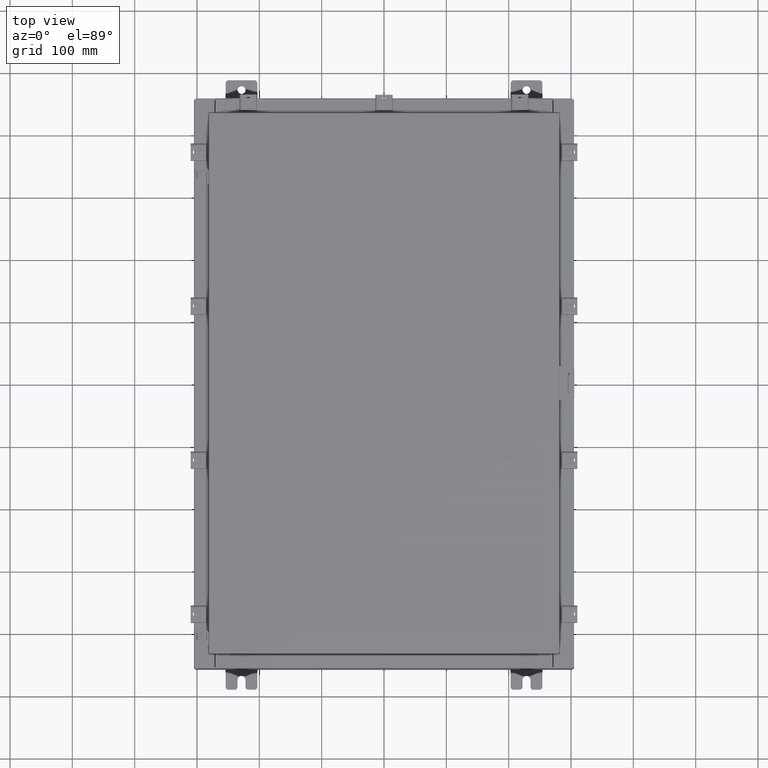
[diagram: clean part render]
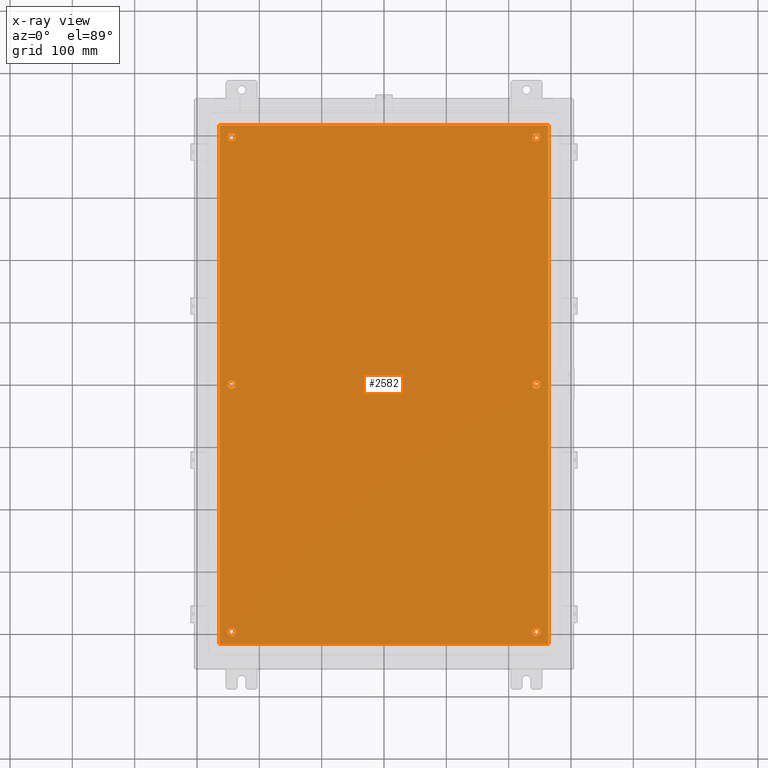
[diagram: x-ray — body ghosted, one internal face saturated and labeled with its STEP entity id]
A machine part, top view, then the same camera in x-ray: the body is ghosted and one INTERNAL B-rep face — a face not visible from any outside direction — is saturated and labeled: STEP entity #2582.
In plain terms, the highlighted planar face has unit normal (0, 0, -1).
Its self-contained STEP definition (entity closure, byte-faithful):
#240 = EDGE_CURVE ( 'NONE', #3705, #824, #16603, .T. ) ;
#605 = EDGE_CURVE ( 'NONE', #8157, #15867, #16318, .T. ) ;
#811 = FACE_OUTER_BOUND ( 'NONE', #6236, .T. ) ;
#824 = VERTEX_POINT ( 'NONE', #2814 ) ;
#876 = AXIS2_PLACEMENT_3D ( 'NONE', #16723, #6020, #18517 ) ;
#1012 = EDGE_LOOP ( 'NONE', ( #7899, #21853 ) ) ;
#1088 = EDGE_LOOP ( 'NONE', ( #7766, #10263 ) ) ;
#1118 = CARTESIAN_POINT ( 'NONE',  ( -9.875000000000007100, 15.62500000000000200, -0.1039999999999999800 ) ) ;
#1349 = EDGE_CURVE ( 'NONE', #824, #8157, #13275, .T. ) ;
#1371 = ORIENTED_EDGE ( 'NONE', *, *, #22105, .F. ) ;
#1376 = CIRCLE ( 'NONE', #876, 0.2499999999999998100 ) ;
#1528 = CIRCLE ( 'NONE', #2418, 0.2500000000000008900 ) ;
#1532 = EDGE_CURVE ( 'NONE', #1888, #10016, #19974, .T. ) ;
#1780 = PLANE ( 'NONE',  #5433 ) ;
#1801 = AXIS2_PLACEMENT_3D ( 'NONE', #10605, #23094, #12400 ) ;
#1888 = VERTEX_POINT ( 'NONE', #16087 ) ;
#1956 = FACE_BOUND ( 'NONE', #1088, .T. ) ;
#2012 = EDGE_CURVE ( 'NONE', #10016, #1888, #15748, .T. ) ;
#2418 = AXIS2_PLACEMENT_3D ( 'NONE', #20083, #9386, #21864 ) ;
#2582 = ADVANCED_FACE ( 'NONE', ( #1956, #15163, #6215, #15724, #10435, #5652, #811 ), #1780, .T. ) ;
#2709 = CARTESIAN_POINT ( 'NONE',  ( -10.50000000000000200, -16.38299999999999600, -0.1040000000000009100 ) ) ;
#2744 = DIRECTION ( 'NONE',  ( -0.0000000000000000000, -0.0000000000000000000, 1.000000000000000000 ) ) ;
#2788 = DIRECTION ( 'NONE',  ( 1.000000000000000000, -0.0000000000000000000, -0.0000000000000000000 ) ) ;
#2814 = CARTESIAN_POINT ( 'NONE',  ( 10.38300000000000100, 16.38300000000000300, -0.1040000000000009100 ) ) ;
#2932 = EDGE_LOOP ( 'NONE', ( #13123, #14129 ) ) ;
#2939 = ORIENTED_EDGE ( 'NONE', *, *, #1349, .F. ) ;
#3085 = EDGE_CURVE ( 'NONE', #15325, #18062, #8453, .T. ) ;
#3705 = VERTEX_POINT ( 'NONE', #8133 ) ;
#3800 = CIRCLE ( 'NONE', #15603, 0.2499999999999998100 ) ;
#4316 = ORIENTED_EDGE ( 'NONE', *, *, #9806, .T. ) ;
#4343 = EDGE_LOOP ( 'NONE', ( #23237, #4316 ) ) ;
#4685 = ORIENTED_EDGE ( 'NONE', *, *, #22290, .T. ) ;
#4730 = CARTESIAN_POINT ( 'NONE',  ( -10.38300000000000100, 16.38300000000000300, -0.1039999999999987600 ) ) ;
#4943 = ORIENTED_EDGE ( 'NONE', *, *, #605, .F. ) ;
#5098 = DIRECTION ( 'NONE',  ( -0.0000000000000000000, -0.0000000000000000000, 1.000000000000000000 ) ) ;
#5433 = AXIS2_PLACEMENT_3D ( 'NONE', #23115, #21609, #21536 ) ;
#5629 = AXIS2_PLACEMENT_3D ( 'NONE', #21131, #10458, #22947 ) ;
#5652 = FACE_BOUND ( 'NONE', #1012, .T. ) ;
#5823 = LINE ( 'NONE', #2709, #15326 ) ;
#6020 = DIRECTION ( 'NONE',  ( -0.0000000000000000000, -0.0000000000000000000, 1.000000000000000000 ) ) ;
#6215 = FACE_BOUND ( 'NONE', #4343, .T. ) ;
#6236 = EDGE_LOOP ( 'NONE', ( #1371, #4943, #2939, #12473 ) ) ;
#6333 = AXIS2_PLACEMENT_3D ( 'NONE', #6446, #13657, #13500 ) ;
#6446 = CARTESIAN_POINT ( 'NONE',  ( -9.625000000000005300, 2.628543122537473900E-016, -0.1039999999999999800 ) ) ;
#6802 = CARTESIAN_POINT ( 'NONE',  ( 10.38300000000000100, -16.38299999999999600, -0.1040000000000009100 ) ) ;
#7079 = DIRECTION ( 'NONE',  ( 0.0000000000000000000, -1.000000000000000000, 0.0000000000000000000 ) ) ;
#7208 = CIRCLE ( 'NONE', #1801, 0.2499999999999998100 ) ;
#7766 = ORIENTED_EDGE ( 'NONE', *, *, #9598, .T. ) ;
#7849 = ORIENTED_EDGE ( 'NONE', *, *, #15447, .T. ) ;
#7899 = ORIENTED_EDGE ( 'NONE', *, *, #10843, .T. ) ;
#7946 = CARTESIAN_POINT ( 'NONE',  ( -9.875000000000005300, 2.934704822324310800E-016, -0.1039999999999999800 ) ) ;
#8133 = CARTESIAN_POINT ( 'NONE',  ( 10.38300000000000100, -16.38299999999999600, -0.1040000000000009100 ) ) ;
#8157 = VERTEX_POINT ( 'NONE', #4730 ) ;
#8367 = DIRECTION ( 'NONE',  ( -1.000000000000000000, 0.0000000000000000000, 0.0000000000000000000 ) ) ;
#8441 = AXIS2_PLACEMENT_3D ( 'NONE', #8928, #8903, #8858 ) ;
#8453 = CIRCLE ( 'NONE', #8621, 0.2500000000000008900 ) ;
#8521 = VECTOR ( 'NONE', #17011, 39.37007874015748100 ) ;
#8621 = AXIS2_PLACEMENT_3D ( 'NONE', #9488, #20395, #8367 ) ;
#8858 = DIRECTION ( 'NONE',  ( -1.000000000000000000, 0.0000000000000000000, 0.0000000000000000000 ) ) ;
#8903 = DIRECTION ( 'NONE',  ( -0.0000000000000000000, -0.0000000000000000000, 1.000000000000000000 ) ) ;
#8928 = CARTESIAN_POINT ( 'NONE',  ( -9.625000000000005300, 2.628543122537473900E-016, -0.1039999999999999800 ) ) ;
#8941 = AXIS2_PLACEMENT_3D ( 'NONE', #21236, #10571, #23057 ) ;
#9021 = VERTEX_POINT ( 'NONE', #21101 ) ;
#9386 = DIRECTION ( 'NONE',  ( -0.0000000000000000000, -0.0000000000000000000, 1.000000000000000000 ) ) ;
#9488 = CARTESIAN_POINT ( 'NONE',  ( -9.625000000000007100, 15.62500000000000200, -0.1039999999999999800 ) ) ;
#9598 = EDGE_CURVE ( 'NONE', #14860, #18648, #19246, .T. ) ;
#9753 = AXIS2_PLACEMENT_3D ( 'NONE', #10624, #23118, #12425 ) ;
#9806 = EDGE_CURVE ( 'NONE', #9021, #10739, #1528, .T. ) ;
#9814 = EDGE_LOOP ( 'NONE', ( #4685, #7849 ) ) ;
#9887 = CARTESIAN_POINT ( 'NONE',  ( -10.38300000000000100, -16.38299999999999600, -0.1040000000000009100 ) ) ;
#9895 = VERTEX_POINT ( 'NONE', #22026 ) ;
#10016 = VERTEX_POINT ( 'NONE', #7946 ) ;
#10045 = CARTESIAN_POINT ( 'NONE',  ( -9.625000000000007100, 15.62500000000000200, -0.1039999999999999800 ) ) ;
#10263 = ORIENTED_EDGE ( 'NONE', *, *, #17922, .T. ) ;
#10281 = EDGE_CURVE ( 'NONE', #18632, #15574, #22844, .T. ) ;
#10435 = FACE_BOUND ( 'NONE', #9814, .T. ) ;
#10458 = DIRECTION ( 'NONE',  ( -0.0000000000000000000, -0.0000000000000000000, 1.000000000000000000 ) ) ;
#10524 = CIRCLE ( 'NONE', #20745, 0.2500000000000008900 ) ;
#10571 = DIRECTION ( 'NONE',  ( -0.0000000000000000000, -0.0000000000000000000, 1.000000000000000000 ) ) ;
#10605 = CARTESIAN_POINT ( 'NONE',  ( 9.625000000000007100, 15.62500000000000200, -0.1039999999999999800 ) ) ;
#10624 = CARTESIAN_POINT ( 'NONE',  ( -9.625000000000007100, -15.62500000000000200, -0.1039999999999999800 ) ) ;
#10664 = CIRCLE ( 'NONE', #16008, 0.2499999999999998100 ) ;
#10739 = VERTEX_POINT ( 'NONE', #22077 ) ;
#10843 = EDGE_CURVE ( 'NONE', #18062, #15325, #10524, .T. ) ;
#11560 = DIRECTION ( 'NONE',  ( 0.0000000000000000000, 1.000000000000000000, 0.0000000000000000000 ) ) ;
#11847 = DIRECTION ( 'NONE',  ( -1.000000000000000000, 0.0000000000000000000, 0.0000000000000000000 ) ) ;
#12048 = VERTEX_POINT ( 'NONE', #23268 ) ;
#12314 = EDGE_LOOP ( 'NONE', ( #14710, #16347 ) ) ;
#12400 = DIRECTION ( 'NONE',  ( -1.000000000000000000, 0.0000000000000000000, 0.0000000000000000000 ) ) ;
#12425 = DIRECTION ( 'NONE',  ( -1.000000000000000000, 0.0000000000000000000, 0.0000000000000000000 ) ) ;
#12473 = ORIENTED_EDGE ( 'NONE', *, *, #240, .F. ) ;
#13123 = ORIENTED_EDGE ( 'NONE', *, *, #10281, .T. ) ;
#13275 = LINE ( 'NONE', #18089, #8521 ) ;
#13500 = DIRECTION ( 'NONE',  ( -1.000000000000000000, 0.0000000000000000000, 0.0000000000000000000 ) ) ;
#13528 = CARTESIAN_POINT ( 'NONE',  ( 9.625000000000007100, 2.620299400612403500E-015, -0.1039999999999999800 ) ) ;
#13657 = DIRECTION ( 'NONE',  ( -0.0000000000000000000, -0.0000000000000000000, 1.000000000000000000 ) ) ;
#14129 = ORIENTED_EDGE ( 'NONE', *, *, #19611, .T. ) ;
#14710 = ORIENTED_EDGE ( 'NONE', *, *, #1532, .T. ) ;
#14820 = EDGE_CURVE ( 'NONE', #10739, #9021, #21285, .T. ) ;
#14860 = VERTEX_POINT ( 'NONE', #21461 ) ;
#15163 = FACE_BOUND ( 'NONE', #12314, .T. ) ;
#15309 = DIRECTION ( 'NONE',  ( -1.000000000000000000, 0.0000000000000000000, 0.0000000000000000000 ) ) ;
#15325 = VERTEX_POINT ( 'NONE', #1118 ) ;
#15326 = VECTOR ( 'NONE', #2788, 39.37007874015748100 ) ;
#15447 = EDGE_CURVE ( 'NONE', #9895, #12048, #10664, .T. ) ;
#15574 = VERTEX_POINT ( 'NONE', #16350 ) ;
#15603 = AXIS2_PLACEMENT_3D ( 'NONE', #13528, #2744, #15309 ) ;
#15724 = FACE_BOUND ( 'NONE', #2932, .T. ) ;
#15748 = CIRCLE ( 'NONE', #6333, 0.2500000000000008900 ) ;
#15816 = CARTESIAN_POINT ( 'NONE',  ( 9.625000000000007100, 15.62500000000000200, -0.1039999999999999800 ) ) ;
#15867 = VERTEX_POINT ( 'NONE', #9887 ) ;
#16008 = AXIS2_PLACEMENT_3D ( 'NONE', #15816, #5098, #17603 ) ;
#16087 = CARTESIAN_POINT ( 'NONE',  ( -9.375000000000005300, 2.628543122537473900E-016, -0.1039999999999999800 ) ) ;
#16318 = LINE ( 'NONE', #20115, #19970 ) ;
#16347 = ORIENTED_EDGE ( 'NONE', *, *, #2012, .T. ) ;
#16350 = CARTESIAN_POINT ( 'NONE',  ( 9.375000000000007100, -15.62500000000000200, -0.1039999999999999800 ) ) ;
#16603 = LINE ( 'NONE', #6802, #21364 ) ;
#16723 = CARTESIAN_POINT ( 'NONE',  ( 9.625000000000007100, -15.62500000000000200, -0.1039999999999999800 ) ) ;
#17011 = DIRECTION ( 'NONE',  ( -1.000000000000000000, -0.0000000000000000000, -0.0000000000000000000 ) ) ;
#17603 = DIRECTION ( 'NONE',  ( -1.000000000000000000, 0.0000000000000000000, 0.0000000000000000000 ) ) ;
#17922 = EDGE_CURVE ( 'NONE', #18648, #14860, #3800, .T. ) ;
#18062 = VERTEX_POINT ( 'NONE', #21228 ) ;
#18089 = CARTESIAN_POINT ( 'NONE',  ( 10.50000000000000400, 16.38299999999999900, -0.1040000000000009100 ) ) ;
#18517 = DIRECTION ( 'NONE',  ( -1.000000000000000000, 0.0000000000000000000, 0.0000000000000000000 ) ) ;
#18632 = VERTEX_POINT ( 'NONE', #21204 ) ;
#18648 = VERTEX_POINT ( 'NONE', #23099 ) ;
#19246 = CIRCLE ( 'NONE', #8941, 0.2499999999999998100 ) ;
#19611 = EDGE_CURVE ( 'NONE', #15574, #18632, #1376, .T. ) ;
#19970 = VECTOR ( 'NONE', #7079, 39.37007874015748100 ) ;
#19974 = CIRCLE ( 'NONE', #8441, 0.2500000000000008900 ) ;
#20083 = CARTESIAN_POINT ( 'NONE',  ( -9.625000000000007100, -15.62500000000000200, -0.1039999999999999800 ) ) ;
#20115 = CARTESIAN_POINT ( 'NONE',  ( -10.38300000000000100, 16.38300000000000300, -0.1039999999999987600 ) ) ;
#20395 = DIRECTION ( 'NONE',  ( -0.0000000000000000000, -0.0000000000000000000, 1.000000000000000000 ) ) ;
#20745 = AXIS2_PLACEMENT_3D ( 'NONE', #10045, #22545, #11847 ) ;
#21101 = CARTESIAN_POINT ( 'NONE',  ( -9.875000000000007100, -15.62500000000000200, -0.1039999999999999800 ) ) ;
#21131 = CARTESIAN_POINT ( 'NONE',  ( 9.625000000000007100, -15.62500000000000200, -0.1039999999999999800 ) ) ;
#21204 = CARTESIAN_POINT ( 'NONE',  ( 9.875000000000007100, -15.62500000000000200, -0.1039999999999999800 ) ) ;
#21228 = CARTESIAN_POINT ( 'NONE',  ( -9.375000000000007100, 15.62500000000000200, -0.1039999999999999800 ) ) ;
#21236 = CARTESIAN_POINT ( 'NONE',  ( 9.625000000000007100, 2.620299400612403500E-015, -0.1039999999999999800 ) ) ;
#21285 = CIRCLE ( 'NONE', #9753, 0.2500000000000008900 ) ;
#21364 = VECTOR ( 'NONE', #11560, 39.37007874015748100 ) ;
#21461 = CARTESIAN_POINT ( 'NONE',  ( 9.875000000000007100, 2.620299400612403500E-015, -0.1039999999999999800 ) ) ;
#21536 = DIRECTION ( 'NONE',  ( -1.000000000000000000, 0.0000000000000000000, -0.0000000000000000000 ) ) ;
#21609 = DIRECTION ( 'NONE',  ( 0.0000000000000000000, 0.0000000000000000000, -1.000000000000000000 ) ) ;
#21853 = ORIENTED_EDGE ( 'NONE', *, *, #3085, .T. ) ;
#21864 = DIRECTION ( 'NONE',  ( -1.000000000000000000, 0.0000000000000000000, 0.0000000000000000000 ) ) ;
#22026 = CARTESIAN_POINT ( 'NONE',  ( 9.375000000000007100, 15.62500000000000200, -0.1039999999999999800 ) ) ;
#22077 = CARTESIAN_POINT ( 'NONE',  ( -9.375000000000007100, -15.62500000000000200, -0.1039999999999999800 ) ) ;
#22105 = EDGE_CURVE ( 'NONE', #15867, #3705, #5823, .T. ) ;
#22290 = EDGE_CURVE ( 'NONE', #12048, #9895, #7208, .T. ) ;
#22545 = DIRECTION ( 'NONE',  ( -0.0000000000000000000, -0.0000000000000000000, 1.000000000000000000 ) ) ;
#22844 = CIRCLE ( 'NONE', #5629, 0.2499999999999998100 ) ;
#22947 = DIRECTION ( 'NONE',  ( -1.000000000000000000, 0.0000000000000000000, 0.0000000000000000000 ) ) ;
#23057 = DIRECTION ( 'NONE',  ( -1.000000000000000000, 0.0000000000000000000, 0.0000000000000000000 ) ) ;
#23094 = DIRECTION ( 'NONE',  ( -0.0000000000000000000, -0.0000000000000000000, 1.000000000000000000 ) ) ;
#23099 = CARTESIAN_POINT ( 'NONE',  ( 9.375000000000007100, 2.650915570591087300E-015, -0.1039999999999999800 ) ) ;
#23115 = CARTESIAN_POINT ( 'NONE',  ( 0.0000000000000000000, 0.0000000000000000000, -0.1039999999999999800 ) ) ;
#23118 = DIRECTION ( 'NONE',  ( -0.0000000000000000000, -0.0000000000000000000, 1.000000000000000000 ) ) ;
#23237 = ORIENTED_EDGE ( 'NONE', *, *, #14820, .T. ) ;
#23268 = CARTESIAN_POINT ( 'NONE',  ( 9.875000000000007100, 15.62500000000000200, -0.1039999999999999800 ) ) ;